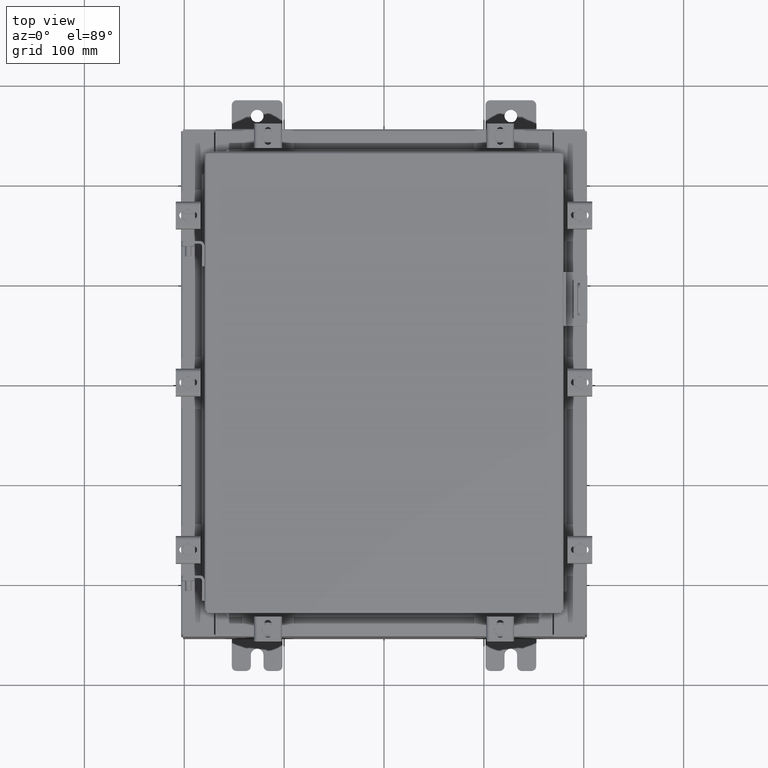
[diagram: clean part render]
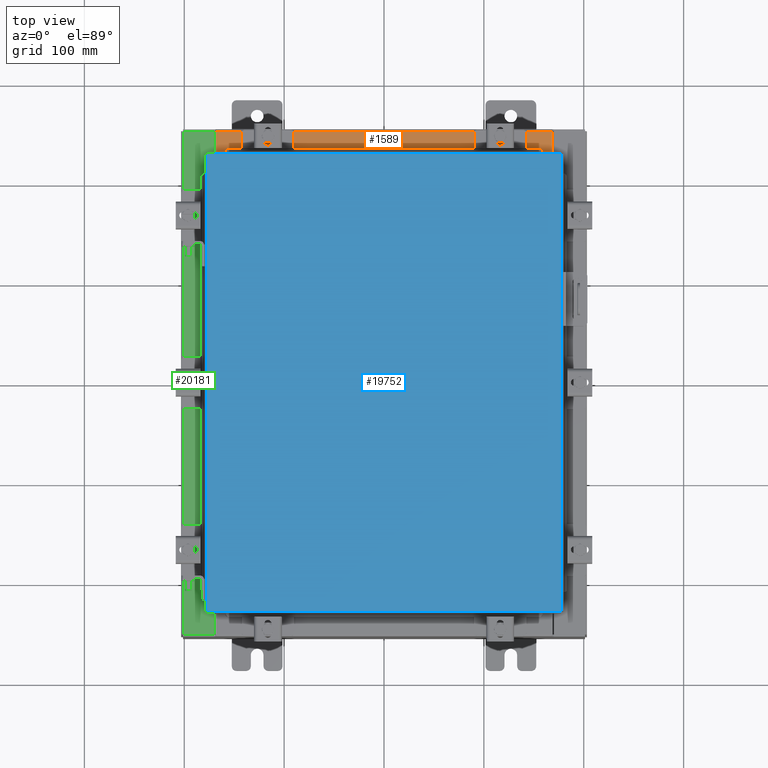
[diagram: same view with three faces highlighted in distinct colors, each labeled with its STEP entity id]
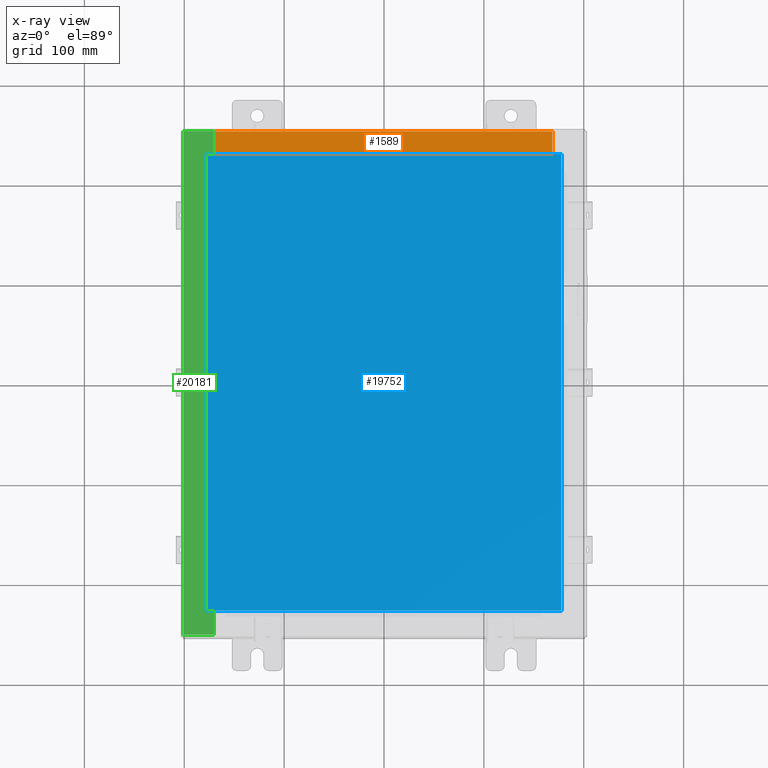
[diagram: x-ray of the same camera — body ghosted, the three highlighted faces saturated]
A machine part, top view with three faces highlighted in distinct colors.
The next image is the same camera in x-ray (body ghosted, the three faces saturated) — at least one of them is partly hidden behind the body in this view.
Their STEP definitions:

[orange] entity #1589 — the highlighted planar face has unit normal (0, 0, 1).
#1058 = VECTOR ( 'NONE', #7820, 39.37007874015748100 ) ;
#1519 = VERTEX_POINT ( 'NONE', #16297 ) ;
#1589 = ADVANCED_FACE ( 'NONE', ( #2839 ), #13748, .T. ) ;
#2839 = FACE_OUTER_BOUND ( 'NONE', #13419, .T. ) ;
#3960 = AXIS2_PLACEMENT_3D ( 'NONE', #6965, #21026, #20321 ) ;
#5084 = VECTOR ( 'NONE', #8888, 39.37007874015748100 ) ;
#5873 = VECTOR ( 'NONE', #9768, 39.37007874015748100 ) ;
#6094 = CARTESIAN_POINT ( 'NONE',  ( 0.0000000000000000000, -0.08770000000000026400, 3.000000000000001300 ) ) ;
#6965 = CARTESIAN_POINT ( 'NONE',  ( 0.0000000000000000000, 1.069354855923099900E-014, 3.000000000000000900 ) ) ;
#7317 = CARTESIAN_POINT ( 'NONE',  ( 6.637199999999999100, -0.08769999999999993100, 3.000000000000000900 ) ) ;
#7820 = DIRECTION ( 'NONE',  ( -1.000000000000000000, 0.0000000000000000000, 0.0000000000000000000 ) ) ;
#7931 = ORIENTED_EDGE ( 'NONE', *, *, #14230, .T. ) ;
#8027 = CARTESIAN_POINT ( 'NONE',  ( -6.637200000000000000, -0.07469999999999973900, 3.000000000000000900 ) ) ;
#8888 = DIRECTION ( 'NONE',  ( -0.0000000000000000000, -1.000000000000000000, 3.566381192773190000E-015 ) ) ;
#9514 = VERTEX_POINT ( 'NONE', #18294 ) ;
#9768 = DIRECTION ( 'NONE',  ( -0.0000000000000000000, 1.000000000000000000, -3.566381192773190000E-015 ) ) ;
#10759 = LINE ( 'NONE', #16206, #5084 ) ;
#11294 = VECTOR ( 'NONE', #14916, 39.37007874015748100 ) ;
#11495 = ORIENTED_EDGE ( 'NONE', *, *, #15124, .F. ) ;
#13419 = EDGE_LOOP ( 'NONE', ( #16781, #11495, #14328, #7931 ) ) ;
#13748 = PLANE ( 'NONE',  #3960 ) ;
#14230 = EDGE_CURVE ( 'NONE', #17373, #21010, #15518, .T. ) ;
#14328 = ORIENTED_EDGE ( 'NONE', *, *, #16029, .F. ) ;
#14916 = DIRECTION ( 'NONE',  ( -1.000000000000000000, 0.0000000000000000000, 0.0000000000000000000 ) ) ;
#14958 = EDGE_CURVE ( 'NONE', #1519, #21010, #19826, .T. ) ;
#15124 = EDGE_CURVE ( 'NONE', #9514, #1519, #21189, .T. ) ;
#15518 = LINE ( 'NONE', #6094, #1058 ) ;
#16029 = EDGE_CURVE ( 'NONE', #17373, #9514, #10759, .T. ) ;
#16206 = CARTESIAN_POINT ( 'NONE',  ( 6.637200000000000000, -1.300299999999999800, 3.000000000000005300 ) ) ;
#16297 = CARTESIAN_POINT ( 'NONE',  ( -6.637200000000000000, -1.287299999999999200, 3.000000000000005300 ) ) ;
#16781 = ORIENTED_EDGE ( 'NONE', *, *, #14958, .F. ) ;
#17373 = VERTEX_POINT ( 'NONE', #7317 ) ;
#17492 = CARTESIAN_POINT ( 'NONE',  ( -6.637200000000000000, -0.08770000000000026400, 3.000000000000000900 ) ) ;
#18294 = CARTESIAN_POINT ( 'NONE',  ( 6.637200000000000000, -1.287299999999999900, 3.000000000000005300 ) ) ;
#18444 = CARTESIAN_POINT ( 'NONE',  ( 6.637200000000000900, -1.287299999999999900, 3.000000000000005300 ) ) ;
#19826 = LINE ( 'NONE', #8027, #5873 ) ;
#20321 = DIRECTION ( 'NONE',  ( 0.0000000000000000000, -1.000000000000000000, 3.566381192773190000E-015 ) ) ;
#21010 = VERTEX_POINT ( 'NONE', #17492 ) ;
#21026 = DIRECTION ( 'NONE',  ( 0.0000000000000000000, 3.566381192773190000E-015, 1.000000000000000000 ) ) ;
#21189 = LINE ( 'NONE', #18444, #11294 ) ;

[blue] entity #19752 — the highlighted planar face has unit normal (0, 0, -1).
#1591 = EDGE_CURVE ( 'NONE', #13224, #16715, #11489, .T. ) ;
#1855 = EDGE_CURVE ( 'NONE', #3251, #19420, #3109, .T. ) ;
#2617 = EDGE_LOOP ( 'NONE', ( #9789, #22105, #4935, #17962 ) ) ;
#3109 = LINE ( 'NONE', #5580, #21092 ) ;
#3251 = VERTEX_POINT ( 'NONE', #9022 ) ;
#3569 = PLANE ( 'NONE',  #21212 ) ;
#3968 = CARTESIAN_POINT ( 'NONE',  ( 6.990299999999996800, 9.006299999999996000, 3.414809992080329000E-016 ) ) ;
#4261 = CARTESIAN_POINT ( 'NONE',  ( 6.990299999999996800, 9.006299999999996000, 3.414809992080329000E-016 ) ) ;
#4787 = EDGE_CURVE ( 'NONE', #19420, #13224, #19115, .T. ) ;
#4935 = ORIENTED_EDGE ( 'NONE', *, *, #14838, .T. ) ;
#5294 = CARTESIAN_POINT ( 'NONE',  ( 0.0000000000000000000, 0.0000000000000000000, 0.0000000000000000000 ) ) ;
#5580 = CARTESIAN_POINT ( 'NONE',  ( -6.990300000000003100, 9.006299999999996000, -2.048885995248197400E-016 ) ) ;
#5981 = DIRECTION ( 'NONE',  ( -1.000000000000000000, -0.0000000000000000000, -0.0000000000000000000 ) ) ;
#6198 = CARTESIAN_POINT ( 'NONE',  ( -6.990300000000003100, -9.006300000000003100, -2.048885995248197400E-016 ) ) ;
#7022 = DIRECTION ( 'NONE',  ( -1.000000000000000000, 0.0000000000000000000, -0.0000000000000000000 ) ) ;
#9022 = CARTESIAN_POINT ( 'NONE',  ( -6.990300000000003100, 9.006299999999996000, -2.048885995248197400E-016 ) ) ;
#9132 = LINE ( 'NONE', #4261, #9467 ) ;
#9210 = VECTOR ( 'NONE', #14389, 39.37007874015748100 ) ;
#9467 = VECTOR ( 'NONE', #5981, 39.37007874015748100 ) ;
#9789 = ORIENTED_EDGE ( 'NONE', *, *, #4787, .T. ) ;
#11489 = LINE ( 'NONE', #11709, #21363 ) ;
#11709 = CARTESIAN_POINT ( 'NONE',  ( 6.990299999999996800, -9.006300000000003100, 3.414809992080329000E-016 ) ) ;
#13224 = VERTEX_POINT ( 'NONE', #14133 ) ;
#14133 = CARTESIAN_POINT ( 'NONE',  ( 6.990299999999996800, -9.006300000000003100, 3.414809992080329000E-016 ) ) ;
#14389 = DIRECTION ( 'NONE',  ( 1.000000000000000000, -0.0000000000000000000, -0.0000000000000000000 ) ) ;
#14838 = EDGE_CURVE ( 'NONE', #16715, #3251, #9132, .T. ) ;
#14974 = DIRECTION ( 'NONE',  ( 0.0000000000000000000, -1.000000000000000000, 0.0000000000000000000 ) ) ;
#16715 = VERTEX_POINT ( 'NONE', #3968 ) ;
#17535 = DIRECTION ( 'NONE',  ( 0.0000000000000000000, 0.0000000000000000000, -1.000000000000000000 ) ) ;
#17739 = FACE_OUTER_BOUND ( 'NONE', #2617, .T. ) ;
#17962 = ORIENTED_EDGE ( 'NONE', *, *, #1855, .T. ) ;
#19115 = LINE ( 'NONE', #21339, #9210 ) ;
#19420 = VERTEX_POINT ( 'NONE', #6198 ) ;
#19752 = ADVANCED_FACE ( 'NONE', ( #17739 ), #3569, .F. ) ;
#21092 = VECTOR ( 'NONE', #14974, 39.37007874015748100 ) ;
#21212 = AXIS2_PLACEMENT_3D ( 'NONE', #5294, #17535, #7022 ) ;
#21339 = CARTESIAN_POINT ( 'NONE',  ( -6.990300000000003100, -9.006300000000003100, -2.048885995248197400E-016 ) ) ;
#21363 = VECTOR ( 'NONE', #21411, 39.37007874015748100 ) ;
#21411 = DIRECTION ( 'NONE',  ( 0.0000000000000000000, 1.000000000000000000, 0.0000000000000000000 ) ) ;
#22105 = ORIENTED_EDGE ( 'NONE', *, *, #1591, .T. ) ;

[green] entity #20181 — the highlighted planar face has unit normal (0, -0, -1).
#721 = EDGE_LOOP ( 'NONE', ( #8420, #17198, #10326, #4258, #22430, #9592, #14517, #12237, #14798, #16315, #13628, #10756 ) ) ;
#973 = CARTESIAN_POINT ( 'NONE',  ( -6.699700000000017800, 8.631100000000000000, 5.925300000000008000 ) ) ;
#1217 = LINE ( 'NONE', #3327, #19188 ) ;
#1241 = CARTESIAN_POINT ( 'NONE',  ( -6.750050000000020300, -8.631100000000008900, 5.925300000000007100 ) ) ;
#1885 = CARTESIAN_POINT ( 'NONE',  ( -6.750050000000020300, 8.593749999999998200, 5.925300000000007100 ) ) ;
#2025 = CARTESIAN_POINT ( 'NONE',  ( -6.750050000000020300, 8.593749999999998200, 5.925300000000007100 ) ) ;
#2107 = DIRECTION ( 'NONE',  ( 1.000000000000000000, -2.170286390199814100E-014, 2.170286390199814100E-014 ) ) ;
#2843 = AXIS2_PLACEMENT_3D ( 'NONE', #11896, #8458, #20686 ) ;
#3083 = LINE ( 'NONE', #21857, #7115 ) ;
#3199 = EDGE_CURVE ( 'NONE', #3916, #9646, #4164, .T. ) ;
#3327 = CARTESIAN_POINT ( 'NONE',  ( -7.912300000000017900, 9.925299999999998200, 5.925299999999999100 ) ) ;
#3916 = VERTEX_POINT ( 'NONE', #1885 ) ;
#3969 = VERTEX_POINT ( 'NONE', #12421 ) ;
#3983 = EDGE_CURVE ( 'NONE', #13083, #16638, #12555, .T. ) ;
#3987 = DIRECTION ( 'NONE',  ( -6.241167087353070500E-015, 5.504816970095138400E-017, 1.000000000000000000 ) ) ;
#4137 = EDGE_CURVE ( 'NONE', #19597, #16638, #10348, .T. ) ;
#4143 = CARTESIAN_POINT ( 'NONE',  ( -6.750050000000020300, 8.612424999999998200, 5.925300000000007100 ) ) ;
#4164 = LINE ( 'NONE', #2025, #21618 ) ;
#4258 = ORIENTED_EDGE ( 'NONE', *, *, #6290, .F. ) ;
#5158 = EDGE_CURVE ( 'NONE', #8528, #19597, #21792, .T. ) ;
#5418 = CARTESIAN_POINT ( 'NONE',  ( -6.699700000000017800, 8.631100000000000000, 5.925300000000008000 ) ) ;
#5786 = EDGE_CURVE ( 'NONE', #8095, #18081, #11946, .T. ) ;
#5861 = DIRECTION ( 'NONE',  ( 1.000000000000000000, 0.0000000000000000000, 0.0000000000000000000 ) ) ;
#6290 = EDGE_CURVE ( 'NONE', #8528, #3969, #1217, .T. ) ;
#6317 = CARTESIAN_POINT ( 'NONE',  ( -7.912300000000017900, -9.925299999999998200, 5.925300000000000000 ) ) ;
#6606 = EDGE_CURVE ( 'NONE', #15743, #3969, #22432, .T. ) ;
#6935 = EDGE_CURVE ( 'NONE', #8095, #15743, #3083, .T. ) ;
#7115 = VECTOR ( 'NONE', #9621, 39.37007874015748100 ) ;
#7179 = DIRECTION ( 'NONE',  ( -1.000000000000000000, -2.170286390199908100E-014, -2.170286390199908100E-014 ) ) ;
#7513 = CARTESIAN_POINT ( 'NONE',  ( -6.699700000000016900, -4.114355251618778600E-016, 5.925300000000008000 ) ) ;
#8095 = VERTEX_POINT ( 'NONE', #973 ) ;
#8399 = CARTESIAN_POINT ( 'NONE',  ( -6.699700000000016000, -9.925300000000005300, 5.925300000000008000 ) ) ;
#8420 = ORIENTED_EDGE ( 'NONE', *, *, #5786, .F. ) ;
#8458 = DIRECTION ( 'NONE',  ( 6.241167087353070500E-015, -5.504816970095137800E-017, -1.000000000000000000 ) ) ;
#8528 = VERTEX_POINT ( 'NONE', #6317 ) ;
#8941 = CARTESIAN_POINT ( 'NONE',  ( -6.699700000000016000, -8.631100000000007100, 5.925300000000008000 ) ) ;
#9592 = ORIENTED_EDGE ( 'NONE', *, *, #4137, .T. ) ;
#9621 = DIRECTION ( 'NONE',  ( -1.100963394019027400E-016, 1.000000000000000000, -5.504816970095207400E-017 ) ) ;
#9646 = VERTEX_POINT ( 'NONE', #11190 ) ;
#9662 = LINE ( 'NONE', #10938, #18467 ) ;
#10177 = DIRECTION ( 'NONE',  ( -0.0000000000000000000, -1.000000000000000000, -0.0000000000000000000 ) ) ;
#10326 = ORIENTED_EDGE ( 'NONE', *, *, #6606, .T. ) ;
#10348 = LINE ( 'NONE', #7513, #15033 ) ;
#10697 = DIRECTION ( 'NONE',  ( 1.000000000000000000, 0.0000000000000000000, 0.0000000000000000000 ) ) ;
#10756 = ORIENTED_EDGE ( 'NONE', *, *, #13337, .F. ) ;
#10938 = CARTESIAN_POINT ( 'NONE',  ( -6.712700000000020300, -8.593750000000008900, 5.925300000000007100 ) ) ;
#11190 = CARTESIAN_POINT ( 'NONE',  ( -6.712700000000020300, 8.593749999999998200, 5.925300000000007100 ) ) ;
#11605 = CARTESIAN_POINT ( 'NONE',  ( -9.033770587765277900E-014, -9.925300000000042600, 5.925300000000049700 ) ) ;
#11660 = FACE_OUTER_BOUND ( 'NONE', #721, .T. ) ;
#11695 = AXIS2_PLACEMENT_3D ( 'NONE', #4143, #16357, #5861 ) ;
#11896 = CARTESIAN_POINT ( 'NONE',  ( -3.724160099870503400E-014, 3.261769199290499200E-016, 5.925300000000049700 ) ) ;
#11946 = LINE ( 'NONE', #5418, #20696 ) ;
#12237 = ORIENTED_EDGE ( 'NONE', *, *, #18386, .F. ) ;
#12412 = VECTOR ( 'NONE', #10177, 39.37007874015748100 ) ;
#12421 = CARTESIAN_POINT ( 'NONE',  ( -7.912300000000017900, 9.925299999999996500, 5.925299999999999100 ) ) ;
#12494 = CARTESIAN_POINT ( 'NONE',  ( -6.750050000000020300, -8.631100000000008900, 5.925300000000007100 ) ) ;
#12513 = VECTOR ( 'NONE', #20341, 39.37007874015748100 ) ;
#12555 = LINE ( 'NONE', #12494, #17266 ) ;
#13083 = VERTEX_POINT ( 'NONE', #1241 ) ;
#13337 = EDGE_CURVE ( 'NONE', #18081, #3916, #16364, .T. ) ;
#13628 = ORIENTED_EDGE ( 'NONE', *, *, #3199, .F. ) ;
#13933 = VERTEX_POINT ( 'NONE', #19189 ) ;
#14408 = CARTESIAN_POINT ( 'NONE',  ( -6.750050000000020300, -8.612425000000007100, 5.925300000000007100 ) ) ;
#14492 = DIRECTION ( 'NONE',  ( -1.000000000000000000, 0.0000000000000000000, 0.0000000000000000000 ) ) ;
#14517 = ORIENTED_EDGE ( 'NONE', *, *, #3983, .F. ) ;
#14756 = AXIS2_PLACEMENT_3D ( 'NONE', #14408, #3987, #16204 ) ;
#14798 = ORIENTED_EDGE ( 'NONE', *, *, #16033, .F. ) ;
#15033 = VECTOR ( 'NONE', #18015, 39.37007874015748100 ) ;
#15462 = PLANE ( 'NONE',  #2843 ) ;
#15743 = VERTEX_POINT ( 'NONE', #18670 ) ;
#16033 = EDGE_CURVE ( 'NONE', #17632, #13933, #9662, .T. ) ;
#16204 = DIRECTION ( 'NONE',  ( 1.000000000000000000, 0.0000000000000000000, 0.0000000000000000000 ) ) ;
#16315 = ORIENTED_EDGE ( 'NONE', *, *, #16446, .F. ) ;
#16357 = DIRECTION ( 'NONE',  ( -6.241167087353070500E-015, 5.504816970095138400E-017, 1.000000000000000000 ) ) ;
#16364 = CIRCLE ( 'NONE', #11695, 0.01867500000000058700 ) ;
#16446 = EDGE_CURVE ( 'NONE', #9646, #17632, #21706, .T. ) ;
#16638 = VERTEX_POINT ( 'NONE', #8941 ) ;
#16841 = CARTESIAN_POINT ( 'NONE',  ( -6.712700000000020300, -8.593750000000008900, 5.925300000000007100 ) ) ;
#17086 = CARTESIAN_POINT ( 'NONE',  ( -6.750050000000020300, 8.631099999999998200, 5.925300000000007100 ) ) ;
#17198 = ORIENTED_EDGE ( 'NONE', *, *, #6935, .T. ) ;
#17266 = VECTOR ( 'NONE', #2107, 39.37007874015748100 ) ;
#17534 = CIRCLE ( 'NONE', #14756, 0.01867500000000058700 ) ;
#17632 = VERTEX_POINT ( 'NONE', #16841 ) ;
#18015 = DIRECTION ( 'NONE',  ( -1.100963394019027400E-016, 1.000000000000000000, -5.504816970095207400E-017 ) ) ;
#18081 = VERTEX_POINT ( 'NONE', #17086 ) ;
#18386 = EDGE_CURVE ( 'NONE', #13933, #13083, #17534, .T. ) ;
#18467 = VECTOR ( 'NONE', #14492, 39.37007874015748100 ) ;
#18544 = DIRECTION ( 'NONE',  ( -1.000000000000000000, 6.130680781421076200E-046, -6.241167087353070500E-015 ) ) ;
#18670 = CARTESIAN_POINT ( 'NONE',  ( -6.699700000000017800, 9.925299999999998200, 5.925300000000008000 ) ) ;
#18961 = DIRECTION ( 'NONE',  ( -0.0000000000000000000, 1.000000000000000000, -5.504816970095139000E-017 ) ) ;
#19188 = VECTOR ( 'NONE', #18961, 39.37007874015748100 ) ;
#19189 = CARTESIAN_POINT ( 'NONE',  ( -6.750050000000020300, -8.593750000000008900, 5.925300000000008000 ) ) ;
#19597 = VERTEX_POINT ( 'NONE', #8399 ) ;
#20181 = ADVANCED_FACE ( 'NONE', ( #11660 ), #15462, .F. ) ;
#20341 = DIRECTION ( 'NONE',  ( 1.000000000000000000, -5.349571789159775100E-015, 6.241167087353070500E-015 ) ) ;
#20661 = CARTESIAN_POINT ( 'NONE',  ( -6.712700000000020300, 8.593750000000000000, 5.925300000000007100 ) ) ;
#20686 = DIRECTION ( 'NONE',  ( -1.000000000000000000, 0.0000000000000000000, -6.241167087353070500E-015 ) ) ;
#20696 = VECTOR ( 'NONE', #7179, 39.37007874015748100 ) ;
#21618 = VECTOR ( 'NONE', #10697, 39.37007874015748100 ) ;
#21706 = LINE ( 'NONE', #20661, #12412 ) ;
#21792 = LINE ( 'NONE', #11605, #12513 ) ;
#21857 = CARTESIAN_POINT ( 'NONE',  ( -6.699700000000016900, -4.114355251618778600E-016, 5.925300000000008000 ) ) ;
#21870 = VECTOR ( 'NONE', #18544, 39.37007874015748100 ) ;
#22010 = CARTESIAN_POINT ( 'NONE',  ( -3.724160099870503400E-014, 9.925299999999998200, 5.925300000000049700 ) ) ;
#22430 = ORIENTED_EDGE ( 'NONE', *, *, #5158, .T. ) ;
#22432 = LINE ( 'NONE', #22010, #21870 ) ;